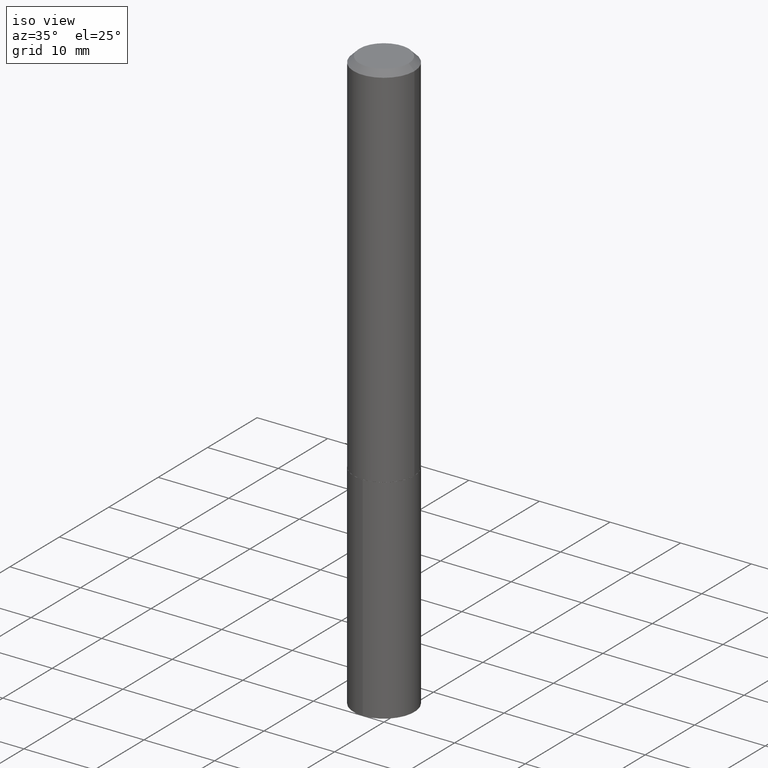
[diagram: clean part render]
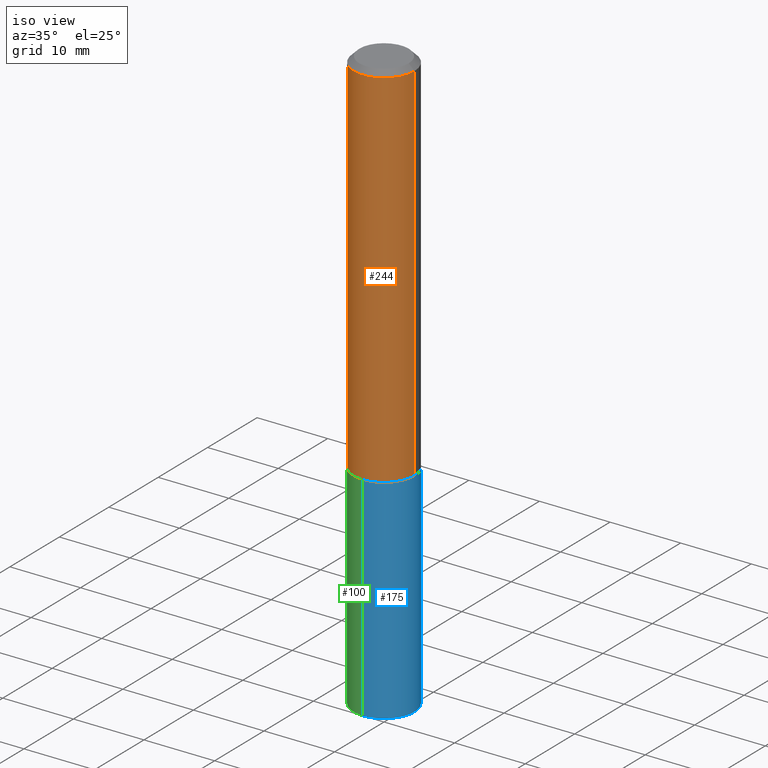
[diagram: same view with three faces highlighted in distinct colors, each labeled with its STEP entity id]
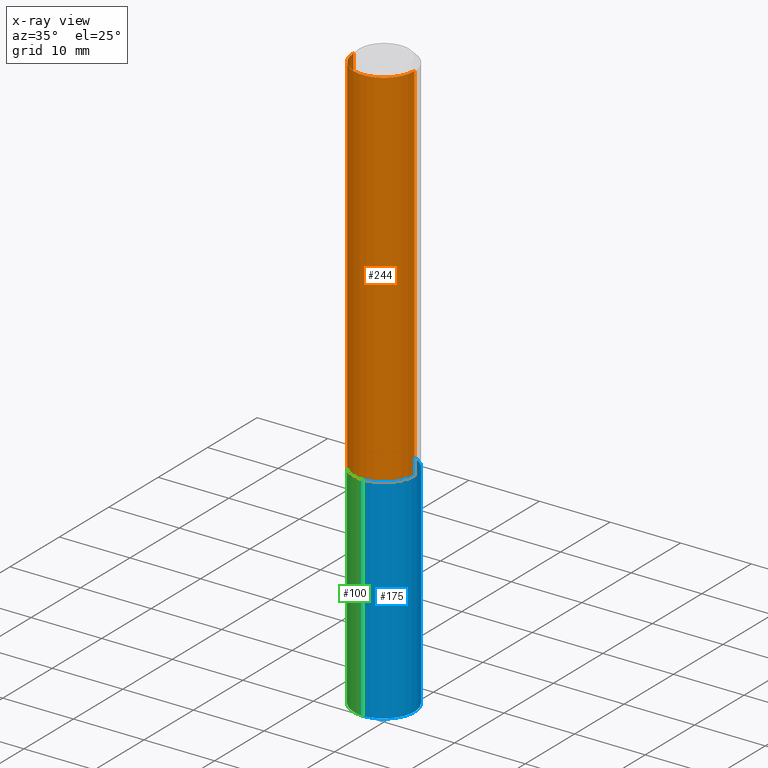
[diagram: x-ray of the same camera — body ghosted, the three highlighted faces saturated]
A machine part, iso view with three faces highlighted in distinct colors.
The next image is the same camera in x-ray (body ghosted, the three faces saturated) — at least one of them is partly hidden behind the body in this view.
Their STEP definitions:

[orange] entity #244 — the highlighted cylindrical surface (partial cylindrical patch) has radius 4.3002 mm, axis along (-0, 0, 1).
#1 = CARTESIAN_POINT ( 'NONE',  ( -0.1693000000000002836, -6.025814112298998676E-15, -2.070400000000000240 ) ) ;
#10 = CARTESIAN_POINT ( 'NONE',  ( 5.063098616325708028E-29, -7.228762963940850701E-15, -2.070400000000000240 ) ) ;
#43 = EDGE_CURVE ( 'NONE', #208, #375, #178, .T. ) ;
#52 = CARTESIAN_POINT ( 'NONE',  ( 0.1693000000000002836, -8.410978545273137094E-15, -2.070400000000000240 ) ) ;
#74 = AXIS2_PLACEMENT_3D ( 'NONE', #10, #139, #376 ) ;
#88 = EDGE_CURVE ( 'NONE', #358, #375, #380, .T. ) ;
#94 = CARTESIAN_POINT ( 'NONE',  ( -0.1693000000000000338, -2.465987026247997876E-15, -0.03125000000000020123 ) ) ;
#99 = VECTOR ( 'NONE', #187, 39.37007874015748143 ) ;
#112 = DIRECTION ( 'NONE',  ( 1.000000000000000000, -6.982962677686265922E-15, 0.000000000000000000 ) ) ;
#129 = CYLINDRICAL_SURFACE ( 'NONE', #146, 0.1693000000000001448 ) ;
#138 = DIRECTION ( 'NONE',  ( -2.445468806185136597E-29, 3.491481338843145583E-15, 1.000000000000000000 ) ) ;
#139 = DIRECTION ( 'NONE',  ( -2.445468806185136597E-29, 3.491481338843145583E-15, 1.000000000000000000 ) ) ;
#146 = AXIS2_PLACEMENT_3D ( 'NONE', #364, #138, #306 ) ;
#148 = CARTESIAN_POINT ( 'NONE',  ( 0.1693000000000001448, -1.182215581332285999E-15, 8.255367281422526831E-30 ) ) ;
#157 = FACE_OUTER_BOUND ( 'NONE', #238, .T. ) ;
#178 = CIRCLE ( 'NONE', #329, 0.1693000000000000338 ) ;
#179 = ORIENTED_EDGE ( 'NONE', *, *, #328, .T. ) ;
#187 = DIRECTION ( 'NONE',  ( -2.445468806185136877E-29, 3.491481338843145188E-15, 1.000000000000000000 ) ) ;
#193 = CIRCLE ( 'NONE', #74, 0.1693000000000002836 ) ;
#205 = VERTEX_POINT ( 'NONE', #1 ) ;
#207 = VECTOR ( 'NONE', #348, 39.37007874015748143 ) ;
#208 = VERTEX_POINT ( 'NONE', #94 ) ;
#238 = EDGE_LOOP ( 'NONE', ( #367, #179, #274, #290 ) ) ;
#244 = ADVANCED_FACE ( 'NONE', ( #157 ), #129, .T. ) ;
#247 = CARTESIAN_POINT ( 'NONE',  ( -0.1693000000000001448, 1.202948851641850644E-15, -8.327757107801562718E-30 ) ) ;
#274 = ORIENTED_EDGE ( 'NONE', *, *, #88, .T. ) ;
#285 = CARTESIAN_POINT ( 'NONE',  ( 7.642090019328600035E-31, -1.091087918388489897E-16, -0.03125000000000020123 ) ) ;
#290 = ORIENTED_EDGE ( 'NONE', *, *, #43, .F. ) ;
#304 = LINE ( 'NONE', #247, #99 ) ;
#305 = EDGE_CURVE ( 'NONE', #205, #208, #304, .T. ) ;
#306 = DIRECTION ( 'NONE',  ( 1.000000000000000000, -6.982962677686266711E-15, 4.876176775795935793E-29 ) ) ;
#317 = DIRECTION ( 'NONE',  ( -2.445468806185136597E-29, 3.491481338843145583E-15, 1.000000000000000000 ) ) ;
#328 = EDGE_CURVE ( 'NONE', #205, #358, #193, .T. ) ;
#329 = AXIS2_PLACEMENT_3D ( 'NONE', #285, #317, #112 ) ;
#347 = CARTESIAN_POINT ( 'NONE',  ( 0.1693000000000000338, -1.291324373171134113E-15, -0.03125000000000020123 ) ) ;
#348 = DIRECTION ( 'NONE',  ( -2.445468806185136877E-29, 3.491481338843145188E-15, 1.000000000000000000 ) ) ;
#358 = VERTEX_POINT ( 'NONE', #52 ) ;
#364 = CARTESIAN_POINT ( 'NONE',  ( 0.000000000000000000, 0.000000000000000000, 0.000000000000000000 ) ) ;
#367 = ORIENTED_EDGE ( 'NONE', *, *, #305, .F. ) ;
#375 = VERTEX_POINT ( 'NONE', #347 ) ;
#376 = DIRECTION ( 'NONE',  ( 1.000000000000000000, -6.982962677686264344E-15, 0.000000000000000000 ) ) ;
#380 = LINE ( 'NONE', #148, #207 ) ;

[blue] entity #175 — the highlighted cylindrical surface (partial cylindrical patch) has radius 4.3002 mm, axis along (-0, 0, 1).
#7 = DIRECTION ( 'NONE',  ( -2.445527322775399676E-29, 3.491397539755331184E-15, 1.000000000000000000 ) ) ;
#9 = CARTESIAN_POINT ( 'NONE',  ( 5.064321350728799708E-29, -7.230508704610271415E-15, -2.070900000000000407 ) ) ;
#13 = CARTESIAN_POINT ( 'NONE',  ( -1.182215581332204746E-15, -0.1693000000000113858, -3.261736201721411099 ) ) ;
#20 = ORIENTED_EDGE ( 'NONE', *, *, #286, .F. ) ;
#24 = DIRECTION ( 'NONE',  ( -2.445527322775399676E-29, 3.491397539755331184E-15, 1.000000000000000000 ) ) ;
#32 = VECTOR ( 'NONE', #7, 39.37007874015748143 ) ;
#38 = VECTOR ( 'NONE', #151, 39.37007874015748143 ) ;
#42 = DIRECTION ( 'NONE',  ( -6.982962677686265922E-15, -1.000000000000000000, 3.227227399485248397E-15 ) ) ;
#45 = AXIS2_PLACEMENT_3D ( 'NONE', #9, #339, #42 ) ;
#60 = LINE ( 'NONE', #359, #38 ) ;
#64 = CYLINDRICAL_SURFACE ( 'NONE', #388, 0.1693000000000000338 ) ;
#92 = VERTEX_POINT ( 'NONE', #13 ) ;
#102 = LINE ( 'NONE', #372, #32 ) ;
#132 = EDGE_LOOP ( 'NONE', ( #387, #350, #199, #20 ) ) ;
#133 = CARTESIAN_POINT ( 'NONE',  ( 7.976543818988589175E-29, -1.138819128955199005E-14, -3.261736201721411543 ) ) ;
#151 = DIRECTION ( 'NONE',  ( -2.445527322775399676E-29, 3.491397539755331184E-15, 1.000000000000000000 ) ) ;
#158 = VERTEX_POINT ( 'NONE', #195 ) ;
#160 = DIRECTION ( 'NONE',  ( -2.445527322775399676E-29, 3.491397539755331184E-15, 1.000000000000000000 ) ) ;
#172 = EDGE_CURVE ( 'NONE', #299, #293, #60, .T. ) ;
#175 = ADVANCED_FACE ( 'NONE', ( #295 ), #64, .T. ) ;
#180 = DIRECTION ( 'NONE',  ( -6.982962677686265922E-15, -1.000000000000000000, 3.227227399485248397E-15 ) ) ;
#186 = CIRCLE ( 'NONE', #236, 0.1693000000000000338 ) ;
#195 = CARTESIAN_POINT ( 'NONE',  ( -1.182215581332234328E-15, -0.1693000000000072502, -2.070899999999999963 ) ) ;
#199 = ORIENTED_EDGE ( 'NONE', *, *, #321, .F. ) ;
#216 = CIRCLE ( 'NONE', #45, 0.1693000000000000338 ) ;
#236 = AXIS2_PLACEMENT_3D ( 'NONE', #133, #160, #308 ) ;
#286 = EDGE_CURVE ( 'NONE', #92, #158, #102, .T. ) ;
#293 = VERTEX_POINT ( 'NONE', #334 ) ;
#294 = EDGE_CURVE ( 'NONE', #92, #299, #186, .T. ) ;
#295 = FACE_OUTER_BOUND ( 'NONE', #132, .T. ) ;
#299 = VERTEX_POINT ( 'NONE', #370 ) ;
#302 = CARTESIAN_POINT ( 'NONE',  ( 5.064321350728799708E-29, -7.230508704610271415E-15, -2.070900000000000407 ) ) ;
#308 = DIRECTION ( 'NONE',  ( -6.982962677686265922E-15, -1.000000000000000000, 3.227227399485248397E-15 ) ) ;
#321 = EDGE_CURVE ( 'NONE', #158, #293, #216, .T. ) ;
#334 = CARTESIAN_POINT ( 'NONE',  ( 1.202948851641929530E-15, 0.1692999999999928173, -2.070900000000000851 ) ) ;
#339 = DIRECTION ( 'NONE',  ( -2.445527322775399676E-29, 3.491397539755331184E-15, 1.000000000000000000 ) ) ;
#350 = ORIENTED_EDGE ( 'NONE', *, *, #172, .T. ) ;
#359 = CARTESIAN_POINT ( 'NONE',  ( 1.202948851641900145E-15, 0.1692999999999927896, -2.070900000000000851 ) ) ;
#370 = CARTESIAN_POINT ( 'NONE',  ( 1.202948851641929333E-15, 0.1692999999999886263, -3.261736201721411987 ) ) ;
#372 = CARTESIAN_POINT ( 'NONE',  ( -1.182215581332234328E-15, -0.1693000000000072502, -2.070899999999999963 ) ) ;
#387 = ORIENTED_EDGE ( 'NONE', *, *, #294, .T. ) ;
#388 = AXIS2_PLACEMENT_3D ( 'NONE', #302, #24, #180 ) ;

[green] entity #100 — the highlighted cylindrical surface (partial cylindrical patch) has radius 4.3002 mm, axis along (-0, 0, 1).
#2 = AXIS2_PLACEMENT_3D ( 'NONE', #319, #142, #58 ) ;
#5 = EDGE_CURVE ( 'NONE', #293, #158, #303, .T. ) ;
#7 = DIRECTION ( 'NONE',  ( -2.445527322775399676E-29, 3.491397539755331184E-15, 1.000000000000000000 ) ) ;
#13 = CARTESIAN_POINT ( 'NONE',  ( -1.182215581332204746E-15, -0.1693000000000113858, -3.261736201721411099 ) ) ;
#32 = VECTOR ( 'NONE', #7, 39.37007874015748143 ) ;
#38 = VECTOR ( 'NONE', #151, 39.37007874015748143 ) ;
#56 = ORIENTED_EDGE ( 'NONE', *, *, #286, .T. ) ;
#58 = DIRECTION ( 'NONE',  ( -6.982962677686265922E-15, -1.000000000000000000, 3.227227399485248397E-15 ) ) ;
#60 = LINE ( 'NONE', #359, #38 ) ;
#80 = ORIENTED_EDGE ( 'NONE', *, *, #149, .T. ) ;
#92 = VERTEX_POINT ( 'NONE', #13 ) ;
#100 = ADVANCED_FACE ( 'NONE', ( #323 ), #384, .T. ) ;
#102 = LINE ( 'NONE', #372, #32 ) ;
#108 = CARTESIAN_POINT ( 'NONE',  ( 5.064321350728799708E-29, -7.230508704610271415E-15, -2.070900000000000407 ) ) ;
#114 = CARTESIAN_POINT ( 'NONE',  ( 7.976543818988589175E-29, -1.138819128955199005E-14, -3.261736201721411543 ) ) ;
#142 = DIRECTION ( 'NONE',  ( -2.445527322775399676E-29, 3.491397539755331184E-15, 1.000000000000000000 ) ) ;
#143 = DIRECTION ( 'NONE',  ( -2.445527322775399676E-29, 3.491397539755331184E-15, 1.000000000000000000 ) ) ;
#149 = EDGE_CURVE ( 'NONE', #299, #92, #374, .T. ) ;
#151 = DIRECTION ( 'NONE',  ( -2.445527322775399676E-29, 3.491397539755331184E-15, 1.000000000000000000 ) ) ;
#156 = EDGE_LOOP ( 'NONE', ( #326, #80, #56, #338 ) ) ;
#158 = VERTEX_POINT ( 'NONE', #195 ) ;
#172 = EDGE_CURVE ( 'NONE', #299, #293, #60, .T. ) ;
#195 = CARTESIAN_POINT ( 'NONE',  ( -1.182215581332234328E-15, -0.1693000000000072502, -2.070899999999999963 ) ) ;
#201 = DIRECTION ( 'NONE',  ( -6.982962677686265922E-15, -1.000000000000000000, 3.227227399485248397E-15 ) ) ;
#240 = AXIS2_PLACEMENT_3D ( 'NONE', #114, #143, #255 ) ;
#255 = DIRECTION ( 'NONE',  ( -6.982962677686265922E-15, -1.000000000000000000, 3.227227399485248397E-15 ) ) ;
#259 = DIRECTION ( 'NONE',  ( -2.445527322775399676E-29, 3.491397539755331184E-15, 1.000000000000000000 ) ) ;
#286 = EDGE_CURVE ( 'NONE', #92, #158, #102, .T. ) ;
#293 = VERTEX_POINT ( 'NONE', #334 ) ;
#299 = VERTEX_POINT ( 'NONE', #370 ) ;
#303 = CIRCLE ( 'NONE', #381, 0.1693000000000000338 ) ;
#319 = CARTESIAN_POINT ( 'NONE',  ( 5.064321350728799708E-29, -7.230508704610271415E-15, -2.070900000000000407 ) ) ;
#323 = FACE_OUTER_BOUND ( 'NONE', #156, .T. ) ;
#326 = ORIENTED_EDGE ( 'NONE', *, *, #172, .F. ) ;
#334 = CARTESIAN_POINT ( 'NONE',  ( 1.202948851641929530E-15, 0.1692999999999928173, -2.070900000000000851 ) ) ;
#338 = ORIENTED_EDGE ( 'NONE', *, *, #5, .F. ) ;
#359 = CARTESIAN_POINT ( 'NONE',  ( 1.202948851641900145E-15, 0.1692999999999927896, -2.070900000000000851 ) ) ;
#370 = CARTESIAN_POINT ( 'NONE',  ( 1.202948851641929333E-15, 0.1692999999999886263, -3.261736201721411987 ) ) ;
#372 = CARTESIAN_POINT ( 'NONE',  ( -1.182215581332234328E-15, -0.1693000000000072502, -2.070899999999999963 ) ) ;
#374 = CIRCLE ( 'NONE', #240, 0.1693000000000000338 ) ;
#381 = AXIS2_PLACEMENT_3D ( 'NONE', #108, #259, #201 ) ;
#384 = CYLINDRICAL_SURFACE ( 'NONE', #2, 0.1693000000000000338 ) ;